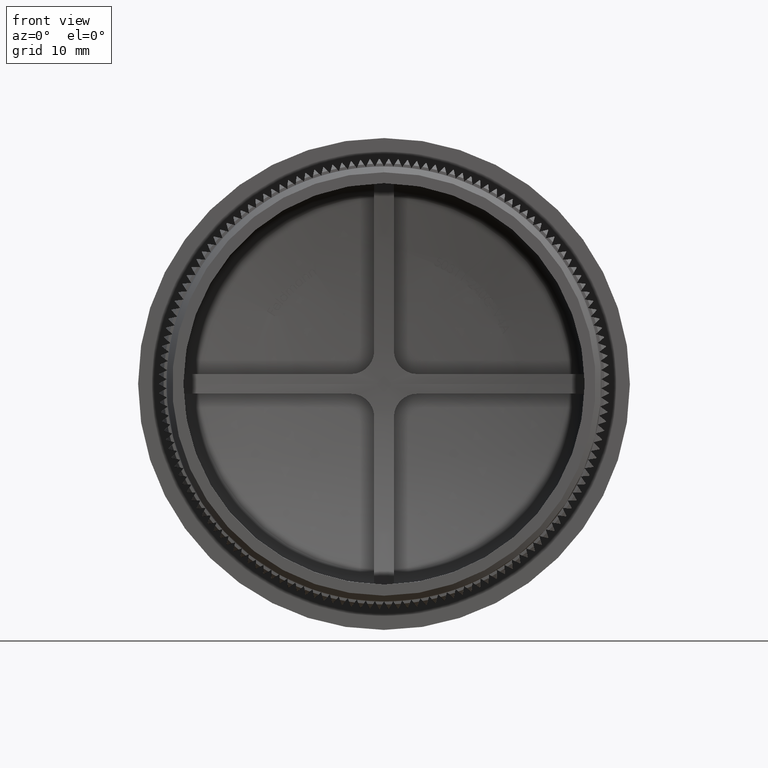
[diagram: clean part render]
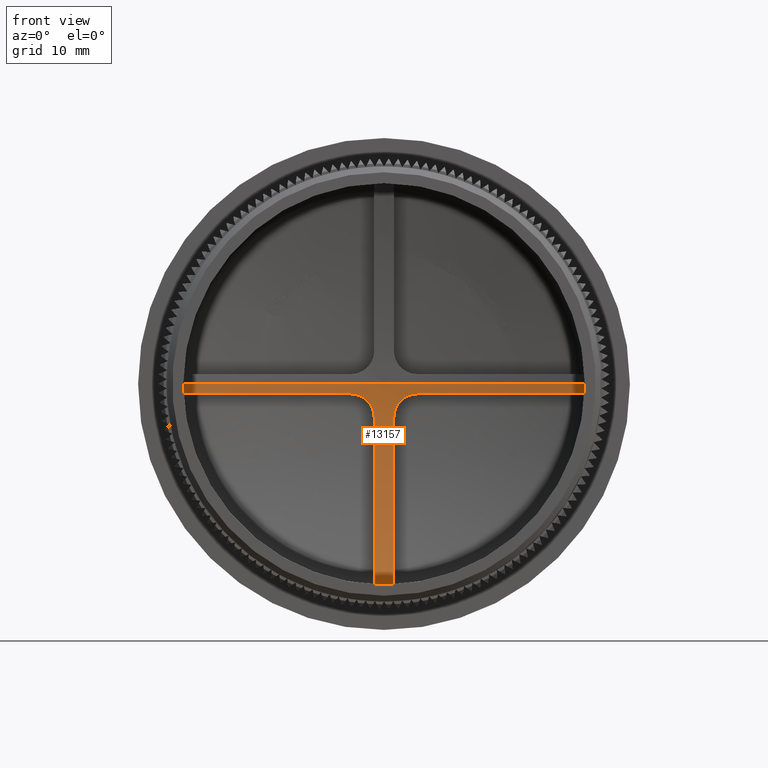
[diagram: same view with one face highlighted and labeled with its STEP entity id]
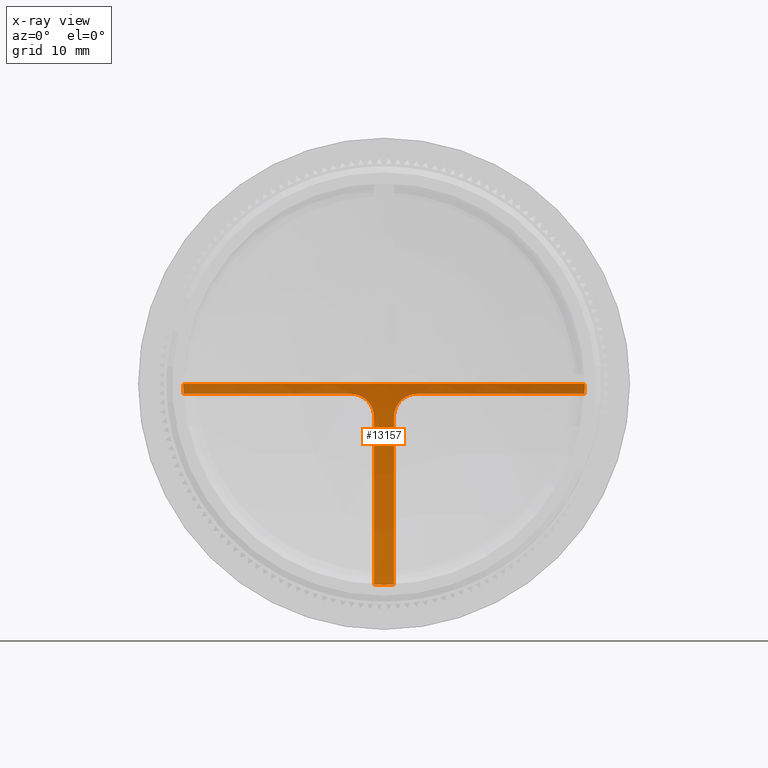
[diagram: x-ray of the same camera — body ghosted, the highlighted face saturated]
A machine part, front view. The second image highlights one B-rep face of the part: STEP entity #13157.
The next image is the same camera in x-ray: the body ghosted, the highlighted face saturated — about 0% of this face is hidden behind the body in this view.
In plain terms, the highlighted spherical surface has radius 59.2222 mm.
Its self-contained STEP definition (entity closure, byte-faithful):
#1190 = ORIENTED_EDGE ( 'NONE', *, *, #10998, .F. ) ;
#1652 = CARTESIAN_POINT ( 'NONE',  ( 0.8629311592264241600, 14.43726421046407500, -2.588260817331081500 ) ) ;
#1705 = FACE_OUTER_BOUND ( 'NONE', #18228, .T. ) ;
#1904 = EDGE_CURVE ( 'NONE', #22282, #31801, #16457, .T. ) ;
#1939 = CARTESIAN_POINT ( 'NONE',  ( 0.9520201734852236100, 14.45138982137923400, -2.205919181132524700 ) ) ;
#2006 = CARTESIAN_POINT ( 'NONE',  ( 0.0000000000000000000, 11.91682442351743600, 0.0000000000000000000 ) ) ;
#2089 = CARTESIAN_POINT ( 'NONE',  ( 0.9136330651017813300, 14.44712469719345500, -2.332860684969401800 ) ) ;
#3243 = CARTESIAN_POINT ( 'NONE',  ( -1.251747196656221700, 14.46518692827907200, -1.619691924303406000 ) ) ;
#3253 = ORIENTED_EDGE ( 'NONE', *, *, #20217, .T. ) ;
#3465 = DIRECTION ( 'NONE',  ( 0.0000000000000000000, 0.0000000000000000000, -1.000000000000000000 ) ) ;
#3900 = DIRECTION ( 'NONE',  ( -0.0000000000000000000, -1.000000000000000000, -0.0000000000000000000 ) ) ;
#5266 = B_SPLINE_CURVE_WITH_KNOTS ( 'NONE', 3,
 ( #16545, #20148, #33943, #27153, #6077, #9873, #44641, #30343, #20299, #3243, #9568, #23666, #37710, #20599 ),
 .UNSPECIFIED., .F., .F.,
 ( 4, 2, 2, 2, 2, 2, 4 ),
 ( 0.0000000000000000000, 0.0003907081408674461000, 0.0007814162817348922000, 0.001172124422602338400, 0.001562832563469784400, 0.002344248845204676800, 0.003125665126939567900 ),
 .UNSPECIFIED. ) ;
#5386 = CARTESIAN_POINT ( 'NONE',  ( 2.586088425169617900, 14.43799297873585500, -0.8499999999999999800 ) ) ;
#5482 = DIRECTION ( 'NONE',  ( -0.0000000000000000000, -0.0000000000000000000, 1.000000000000000000 ) ) ;
#5662 = CARTESIAN_POINT ( 'NONE',  ( -17.27910587964550600, 11.91682442351743600, -0.8499999999999999800 ) ) ;
#5701 = VERTEX_POINT ( 'NONE', #38609 ) ;
#5709 = ORIENTED_EDGE ( 'NONE', *, *, #34368, .F. ) ;
#5818 = CARTESIAN_POINT ( 'NONE',  ( -0.8499999999999953100, 11.91682442351743600, -17.27910587964549900 ) ) ;
#5850 = DIRECTION ( 'NONE',  ( 1.000000000000000000, 0.0000000000000000000, 0.0000000000000000000 ) ) ;
#6077 = CARTESIAN_POINT ( 'NONE',  ( -2.205919181132524700, 14.45138982137923600, -0.9520201734852230500 ) ) ;
#6090 = VERTEX_POINT ( 'NONE', #6372 ) ;
#6260 = CIRCLE ( 'NONE', #33316, 59.21612200185236200 ) ;
#6372 = CARTESIAN_POINT ( 'NONE',  ( 0.0000000000000000000, 11.91682442351743600, -17.30000000000000400 ) ) ;
#7206 = CARTESIAN_POINT ( 'NONE',  ( 0.0000000000000000000, -44.72222222222214300, 0.0000000000000000000 ) ) ;
#7349 = CARTESIAN_POINT ( 'NONE',  ( 0.0000000000000000000, 11.91682442351743600, 0.0000000000000000000 ) ) ;
#7552 = DIRECTION ( 'NONE',  ( 0.0000000000000000000, 0.0000000000000000000, -1.000000000000000000 ) ) ;
#8314 = DIRECTION ( 'NONE',  ( -0.0000000000000000000, -1.000000000000000000, -0.0000000000000000000 ) ) ;
#8547 = CARTESIAN_POINT ( 'NONE',  ( 0.8500000000000006400, 14.42527649867275700, -2.850000000000000500 ) ) ;
#9028 = EDGE_CURVE ( 'NONE', #22282, #29521, #18125, .T. ) ;
#9568 = CARTESIAN_POINT ( 'NONE',  ( -1.102664569367476100, 14.46162680361324600, -1.842715310665719700 ) ) ;
#9873 = CARTESIAN_POINT ( 'NONE',  ( -1.963804337998883200, 14.45822201060227000, -1.052272331041082900 ) ) ;
#10372 = AXIS2_PLACEMENT_3D ( 'NONE', #16308, #26461, #5850 ) ;
#10653 = AXIS2_PLACEMENT_3D ( 'NONE', #2006, #8314, #18771 ) ;
#10998 = EDGE_CURVE ( 'NONE', #44715, #31801, #30674, .T. ) ;
#11087 = DIRECTION ( 'NONE',  ( 2.709767477222422400E-016, 0.0000000000000000000, -1.000000000000000000 ) ) ;
#11381 = B_SPLINE_CURVE_WITH_KNOTS ( 'NONE', 3,
 ( #8547, #22628, #1652, #2089, #1939, #29474, #26118, #19436, #43615, #15848, #32802, #12076, #5386, #36264 ),
 .UNSPECIFIED., .F., .F.,
 ( 4, 2, 2, 2, 2, 2, 4 ),
 ( 0.0000000000000000000, 0.0003907081408674458800, 0.0007814162817348917600, 0.001172124422602337500, 0.001562832563469783500, 0.002344248845204675900, 0.003125665126939568400 ),
 .UNSPECIFIED. ) ;
#11457 = VERTEX_POINT ( 'NONE', #18571 ) ;
#11498 = AXIS2_PLACEMENT_3D ( 'NONE', #31244, #21057, #14002 ) ;
#11503 = AXIS2_PLACEMENT_3D ( 'NONE', #19240, #5482, #16083 ) ;
#12076 = CARTESIAN_POINT ( 'NONE',  ( 2.323701593452149900, 14.44807825353737800, -0.9029988341615720100 ) ) ;
#13106 = CIRCLE ( 'NONE', #39898, 17.30000000000000400 ) ;
#13157 = ADVANCED_FACE ( 'NONE', ( #1705 ), #42807, .F. ) ;
#13932 = DIRECTION ( 'NONE',  ( -1.000000000000000000, 0.0000000000000000000, 0.0000000000000000000 ) ) ;
#13981 = ORIENTED_EDGE ( 'NONE', *, *, #40807, .T. ) ;
#14002 = DIRECTION ( 'NONE',  ( -2.837932155199158700E-016, 0.0000000000000000000, 1.000000000000000000 ) ) ;
#14115 = DIRECTION ( 'NONE',  ( -0.0000000000000000000, -1.000000000000000000, -0.0000000000000000000 ) ) ;
#14607 = DIRECTION ( 'NONE',  ( -1.000000000000000000, -0.0000000000000000000, -2.705703487307785300E-016 ) ) ;
#15458 = DIRECTION ( 'NONE',  ( -1.000000000000000000, 0.0000000000000000000, 1.224646799147353200E-016 ) ) ;
#15848 = CARTESIAN_POINT ( 'NONE',  ( 1.619691924303406700, 14.46518692827906700, -1.251747196656221500 ) ) ;
#16083 = DIRECTION ( 'NONE',  ( -1.000000000000000000, 4.452807097706034700E-015, 0.0000000000000000000 ) ) ;
#16139 = VERTEX_POINT ( 'NONE', #44751 ) ;
#16308 = CARTESIAN_POINT ( 'NONE',  ( 0.0000000000000000000, -44.72222222222214300, 0.0000000000000000000 ) ) ;
#16457 = CIRCLE ( 'NONE', #39799, 17.30000000000000400 ) ;
#16530 = ORIENTED_EDGE ( 'NONE', *, *, #30339, .T. ) ;
#16545 = CARTESIAN_POINT ( 'NONE',  ( -2.850000000000000100, 14.42527649867275700, -0.8499999999999999800 ) ) ;
#16715 = ORIENTED_EDGE ( 'NONE', *, *, #25062, .F. ) ;
#16832 = EDGE_CURVE ( 'NONE', #11457, #5701, #6260, .T. ) ;
#17147 = ORIENTED_EDGE ( 'NONE', *, *, #9028, .F. ) ;
#17848 = CIRCLE ( 'NONE', #10372, 59.22222222222215700 ) ;
#18014 = CIRCLE ( 'NONE', #11503, 59.21612200185236200 ) ;
#18125 = CIRCLE ( 'NONE', #33331, 59.21612200185236200 ) ;
#18186 = ORIENTED_EDGE ( 'NONE', *, *, #26139, .T. ) ;
#18228 = EDGE_LOOP ( 'NONE', ( #1190, #13981, #32344, #5709, #3253, #16715, #18186, #28970, #40489, #16530, #17147, #44274 ) ) ;
#18571 = CARTESIAN_POINT ( 'NONE',  ( 0.8500000000000006400, 14.42527649867275700, -2.850000000000000500 ) ) ;
#18771 = DIRECTION ( 'NONE',  ( 0.0000000000000000000, 0.0000000000000000000, -1.000000000000000000 ) ) ;
#19240 = CARTESIAN_POINT ( 'NONE',  ( 0.0000000000000000000, -44.72222222222214300, -0.8499999999999999800 ) ) ;
#19436 = CARTESIAN_POINT ( 'NONE',  ( 1.258643861255279300, 14.46428464480332500, -1.631533832919548300 ) ) ;
#20148 = CARTESIAN_POINT ( 'NONE',  ( -2.718045300620134600, 14.43163468627773600, -0.8500000000000000900 ) ) ;
#20217 = EDGE_CURVE ( 'NONE', #32594, #16139, #5266, .T. ) ;
#20299 = CARTESIAN_POINT ( 'NONE',  ( -1.528576260162955300, 14.46517725398566900, -1.343063771778910000 ) ) ;
#20599 = CARTESIAN_POINT ( 'NONE',  ( -0.8499999999999995300, 14.42527649867275700, -2.849999999999999600 ) ) ;
#21057 = DIRECTION ( 'NONE',  ( 1.000000000000000000, 0.0000000000000000000, 2.837689023274018900E-016 ) ) ;
#22282 = VERTEX_POINT ( 'NONE', #29248 ) ;
#22628 = CARTESIAN_POINT ( 'NONE',  ( 0.8500000000000005300, 14.43163468627773200, -2.718045300620135900 ) ) ;
#22789 = CARTESIAN_POINT ( 'NONE',  ( 0.0000000000000000000, 11.91682442351743600, 0.0000000000000000000 ) ) ;
#23243 = DIRECTION ( 'NONE',  ( -0.0000000000000000000, -1.000000000000000000, -0.0000000000000000000 ) ) ;
#23666 = CARTESIAN_POINT ( 'NONE',  ( -0.9029988341615720100, 14.44807825353737800, -2.323701593452149000 ) ) ;
#24462 = EDGE_CURVE ( 'NONE', #31093, #37247, #27911, .T. ) ;
#24699 = CARTESIAN_POINT ( 'NONE',  ( 0.8499999999999998700, -44.72222222222214300, 2.299847964211616800E-016 ) ) ;
#25062 = EDGE_CURVE ( 'NONE', #28114, #16139, #32249, .T. ) ;
#25107 = CARTESIAN_POINT ( 'NONE',  ( 0.0000000000000000000, 11.91682442351743600, 0.0000000000000000000 ) ) ;
#25236 = CARTESIAN_POINT ( 'NONE',  ( 5.609385278564920900E-018, -44.72222222222214300, -0.8500000000000000900 ) ) ;
#25751 = CARTESIAN_POINT ( 'NONE',  ( 17.29999999999999700, 11.91682442351743600, -2.118638962524920700E-015 ) ) ;
#26118 = CARTESIAN_POINT ( 'NONE',  ( 1.113633680625378400, 14.46079810804077300, -1.848947471117690300 ) ) ;
#26139 = EDGE_CURVE ( 'NONE', #28114, #6090, #38627, .T. ) ;
#26359 = CARTESIAN_POINT ( 'NONE',  ( -3.626315244141880500E-015, 14.50000000000001200, 0.0000000000000000000 ) ) ;
#26461 = DIRECTION ( 'NONE',  ( -0.0000000000000000000, 0.0000000000000000000, 1.000000000000000000 ) ) ;
#27153 = CARTESIAN_POINT ( 'NONE',  ( -2.332860684969403100, 14.44712469719346300, -0.9136330651017807700 ) ) ;
#27911 = CIRCLE ( 'NONE', #10653, 17.30000000000000400 ) ;
#28114 = VERTEX_POINT ( 'NONE', #5818 ) ;
#28970 = ORIENTED_EDGE ( 'NONE', *, *, #35203, .T. ) ;
#29248 = CARTESIAN_POINT ( 'NONE',  ( 17.27910587964549900, 11.91682442351743600, -0.8499999999999999800 ) ) ;
#29474 = CARTESIAN_POINT ( 'NONE',  ( 1.052272331041083500, 14.45822201060226700, -1.963804337998883200 ) ) ;
#29521 = VERTEX_POINT ( 'NONE', #30160 ) ;
#30160 = CARTESIAN_POINT ( 'NONE',  ( 2.850000000000000500, 14.42527649867275700, -0.8500000000000000900 ) ) ;
#30205 = AXIS2_PLACEMENT_3D ( 'NONE', #32697, #42803, #15458 ) ;
#30339 = EDGE_CURVE ( 'NONE', #11457, #29521, #11381, .T. ) ;
#30343 = CARTESIAN_POINT ( 'NONE',  ( -1.631533832919548600, 14.46428464480332300, -1.258643861255278600 ) ) ;
#30674 = CIRCLE ( 'NONE', #30205, 59.22222222222215700 ) ;
#31093 = VERTEX_POINT ( 'NONE', #41115 ) ;
#31244 = CARTESIAN_POINT ( 'NONE',  ( -0.8500000000000003100, -44.72222222222214300, -2.412035669782916800E-016 ) ) ;
#31801 = VERTEX_POINT ( 'NONE', #25751 ) ;
#32249 = CIRCLE ( 'NONE', #11498, 59.21612200185236200 ) ;
#32344 = ORIENTED_EDGE ( 'NONE', *, *, #24462, .T. ) ;
#32594 = VERTEX_POINT ( 'NONE', #38360 ) ;
#32697 = CARTESIAN_POINT ( 'NONE',  ( 0.0000000000000000000, -44.72222222222214300, 0.0000000000000000000 ) ) ;
#32802 = CARTESIAN_POINT ( 'NONE',  ( 1.842715310665720800, 14.46162680361324600, -1.102664569367476400 ) ) ;
#33316 = AXIS2_PLACEMENT_3D ( 'NONE', #24699, #14607, #11087 ) ;
#33331 = AXIS2_PLACEMENT_3D ( 'NONE', #25236, #35824, #35965 ) ;
#33678 = DIRECTION ( 'NONE',  ( 0.0000000000000000000, 0.0000000000000000000, -1.000000000000000000 ) ) ;
#33943 = CARTESIAN_POINT ( 'NONE',  ( -2.588260817331081000, 14.43726421046407500, -0.8629311592264233800 ) ) ;
#34368 = EDGE_CURVE ( 'NONE', #32594, #37247, #18014, .T. ) ;
#35203 = EDGE_CURVE ( 'NONE', #6090, #5701, #13106, .T. ) ;
#35824 = DIRECTION ( 'NONE',  ( -6.599276798311671700E-018, -0.0000000000000000000, 1.000000000000000000 ) ) ;
#35965 = DIRECTION ( 'NONE',  ( -1.000000000000000000, 0.0000000000000000000, -7.323695884384925700E-018 ) ) ;
#36264 = CARTESIAN_POINT ( 'NONE',  ( 2.850000000000000500, 14.42527649867275700, -0.8500000000000000900 ) ) ;
#37247 = VERTEX_POINT ( 'NONE', #5662 ) ;
#37710 = CARTESIAN_POINT ( 'NONE',  ( -0.8500000000000000900, 14.43799297873585600, -2.586088425169617000 ) ) ;
#38360 = CARTESIAN_POINT ( 'NONE',  ( -2.850000000000000100, 14.42527649867275700, -0.8499999999999999800 ) ) ;
#38372 = DIRECTION ( 'NONE',  ( -0.0000000000000000000, -0.0000000000000000000, -1.000000000000000000 ) ) ;
#38609 = CARTESIAN_POINT ( 'NONE',  ( 0.8500000000000044200, 11.91682442351743600, -17.27910587964549900 ) ) ;
#38627 = CIRCLE ( 'NONE', #41121, 17.30000000000000400 ) ;
#39799 = AXIS2_PLACEMENT_3D ( 'NONE', #22789, #23243, #33678 ) ;
#39898 = AXIS2_PLACEMENT_3D ( 'NONE', #7349, #3900, #3465 ) ;
#40489 = ORIENTED_EDGE ( 'NONE', *, *, #16832, .F. ) ;
#40807 = EDGE_CURVE ( 'NONE', #44715, #31093, #17848, .T. ) ;
#41115 = CARTESIAN_POINT ( 'NONE',  ( -17.29999999999999700, 11.91682442351743600, 0.0000000000000000000 ) ) ;
#41121 = AXIS2_PLACEMENT_3D ( 'NONE', #25107, #14115, #7552 ) ;
#42803 = DIRECTION ( 'NONE',  ( -1.224646799147353200E-016, 0.0000000000000000000, -1.000000000000000000 ) ) ;
#42807 = SPHERICAL_SURFACE ( 'NONE', #44721, 59.22222222222215700 ) ;
#43615 = CARTESIAN_POINT ( 'NONE',  ( 1.343063771778910000, 14.46517725398566700, -1.528576260162955100 ) ) ;
#44274 = ORIENTED_EDGE ( 'NONE', *, *, #1904, .T. ) ;
#44641 = CARTESIAN_POINT ( 'NONE',  ( -1.848947471117690800, 14.46079810804077900, -1.113633680625378400 ) ) ;
#44715 = VERTEX_POINT ( 'NONE', #26359 ) ;
#44721 = AXIS2_PLACEMENT_3D ( 'NONE', #7206, #38372, #13932 ) ;
#44751 = CARTESIAN_POINT ( 'NONE',  ( -0.8499999999999995300, 14.42527649867275700, -2.849999999999999600 ) ) ;